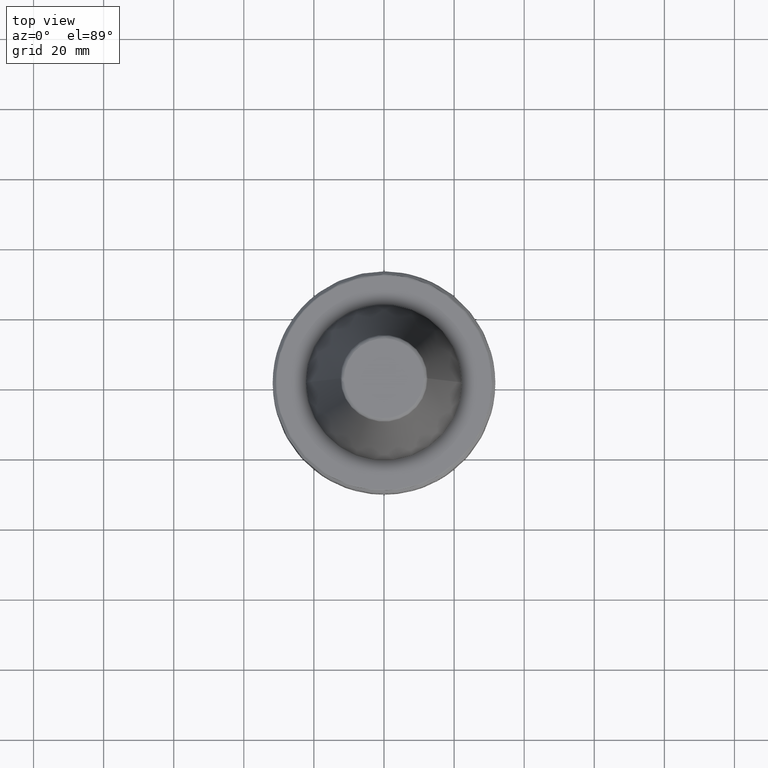
[diagram: clean part render]
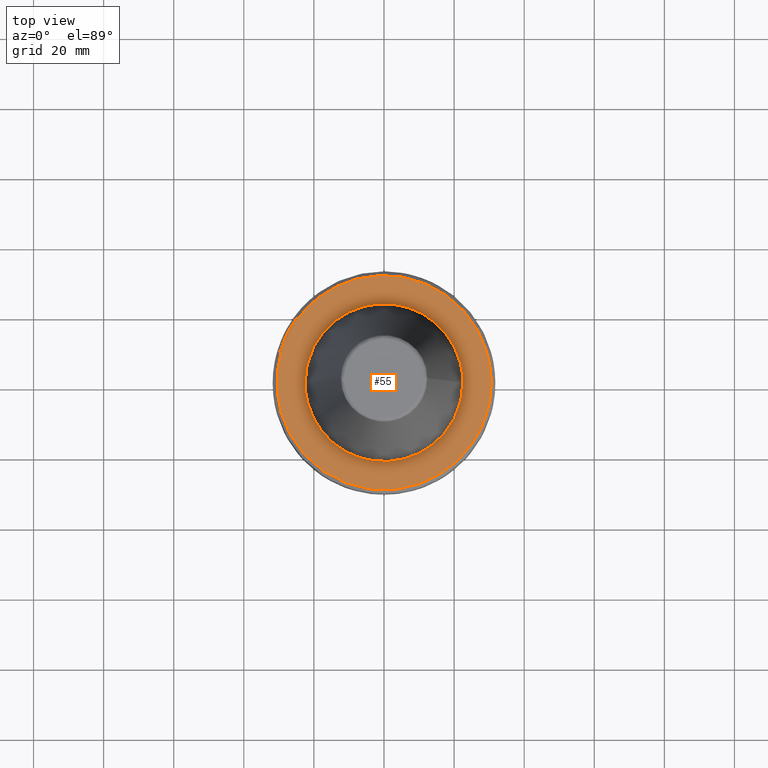
[diagram: same view with one face highlighted and labeled with its STEP entity id]
A machine part, top view. The second image highlights one B-rep face of the part: STEP entity #55.
In plain terms, the highlighted planar face has unit normal (0, 0, 1).
Its self-contained STEP definition (entity closure, byte-faithful):
#27 = CARTESIAN_POINT ( 'NONE',  ( 21.54431431262226600, -21.70996927689732900, -3.200000000000000600 ) ) ;
#30 = CARTESIAN_POINT ( 'NONE',  ( -21.14787063409543700, 7.686207123284956900, -3.200000000000000200 ) ) ;
#31 = CARTESIAN_POINT ( 'NONE',  ( 22.45304634867161300, -1.715799754931167900, -3.200000000000000200 ) ) ;
#39 = CARTESIAN_POINT ( 'NONE',  ( 26.31643672377798600, -15.62062435596873700, -3.200000000000001100 ) ) ;
#41 = CARTESIAN_POINT ( 'NONE',  ( -17.00797338682269500, 14.81177920651246400, -3.200000000000000600 ) ) ;
#43 = CARTESIAN_POINT ( 'NONE',  ( 14.49938022714922100, -17.23607257882569900, -3.199999999999999300 ) ) ;
#45 = CARTESIAN_POINT ( 'NONE',  ( -18.72563884435658800, -12.47437238289159500, -3.200000000000000200 ) ) ;
#54 = CARTESIAN_POINT ( 'NONE',  ( -8.458563634142274500, 20.84958280862222700, -3.200000000000000200 ) ) ;
#55 = ADVANCED_FACE ( 'NONE', ( #2484, #1004 ), #620, .T. ) ;
#61 = CIRCLE ( 'NONE', #1137, 30.58431457505076500 ) ;
#66 = CARTESIAN_POINT ( 'NONE',  ( -25.60566437920638400, -16.72793511368144300, -3.199999999999999700 ) ) ;
#67 = CARTESIAN_POINT ( 'NONE',  ( -1.375857497237935400, 22.49996757040714000, -3.199999999999999700 ) ) ;
#77 = CARTESIAN_POINT ( 'NONE',  ( -19.62778218944514600, -23.51603751686526800, -3.200000000000001100 ) ) ;
#78 = CARTESIAN_POINT ( 'NONE',  ( 7.686207123274499500, 21.14787063409919600, -3.200000000000000600 ) ) ;
#90 = CARTESIAN_POINT ( 'NONE',  ( -9.578915174272756500, -29.04560989628474800, -3.199999999999999700 ) ) ;
#91 = CARTESIAN_POINT ( 'NONE',  ( 14.81177920650271000, 17.00797338683744500, -3.200000000000000600 ) ) ;
#92 = ORIENTED_EDGE ( 'NONE', *, *, #1851, .T. ) ;
#104 = CARTESIAN_POINT ( 'NONE',  ( 0.7805261269332110000, -30.58432787732824200, -3.200000000000000600 ) ) ;
#105 = CARTESIAN_POINT ( 'NONE',  ( 20.84958280862257900, 8.458563634141711400, -3.200000000000000200 ) ) ;
#107 = CARTESIAN_POINT ( 'NONE',  ( -22.10760170058084000, -4.183831549485550900, -3.200000000000000200 ) ) ;
#116 = CARTESIAN_POINT ( 'NONE',  ( 9.187465360224598100, -29.17179097118384600, -3.200000000000000200 ) ) ;
#136 = CARTESIAN_POINT ( 'NONE',  ( 29.30593451889330900, 8.750000000000010700, -3.199999999999994400 ) ) ;
#151 = CARTESIAN_POINT ( 'NONE',  ( 24.54047191478592900, 18.25550594146890800, -3.200000000000001100 ) ) ;
#159 = CARTESIAN_POINT ( 'NONE',  ( 16.33427142386522500, 25.85726144149187200, -3.200000000000000200 ) ) ;
#165 = CARTESIAN_POINT ( 'NONE',  ( 1.756429892742336700, 30.54018886217601300, -3.200000000000000200 ) ) ;
#184 = CARTESIAN_POINT ( 'NONE',  ( -9.340167935440481600, 29.12987215590241500, -3.200000000000000200 ) ) ;
#196 = CARTESIAN_POINT ( 'NONE',  ( -19.24838585782649900, -11.67597141482940200, -3.199999999999999700 ) ) ;
#232 = CARTESIAN_POINT ( 'NONE',  ( 4.251028217301676900, -22.09485092206981000, -3.200000000000000200 ) ) ;
#243 = CARTESIAN_POINT ( 'NONE',  ( 4.407618502877016700, -22.06440325786277500, -3.200000000000000600 ) ) ;
#247 = CARTESIAN_POINT ( 'NONE',  ( 29.30593451889330900, 8.750000000000010700, -3.199999999999994400 ) ) ;
#250 = CARTESIAN_POINT ( 'NONE',  ( -22.45304634867162000, 1.715799754908170300, -3.200000000000000600 ) ) ;
#251 = CARTESIAN_POINT ( 'NONE',  ( 8.370451108365493600, -20.88510905071769100, -3.200000000000001100 ) ) ;
#257 = CARTESIAN_POINT ( 'NONE',  ( 21.91487604512462500, -21.33423715767088100, -3.200000000000001100 ) ) ;
#259 = CARTESIAN_POINT ( 'NONE',  ( 0.0000000000000000000, 0.0000000000000000000, -3.199999999999994400 ) ) ;
#260 = CARTESIAN_POINT ( 'NONE',  ( -20.98673507276603100, 8.112282896141666200, -3.200000000000000600 ) ) ;
#262 = CARTESIAN_POINT ( 'NONE',  ( 8.324524703929661500, -20.90345235396846500, -3.200000000000000600 ) ) ;
#275 = CARTESIAN_POINT ( 'NONE',  ( 27.32133677085897000, -13.74839770497927400, -3.199999999999999700 ) ) ;
#278 = CARTESIAN_POINT ( 'NONE',  ( -14.49938022714616500, 17.23607257882436300, -3.199999999999999700 ) ) ;
#286 = CARTESIAN_POINT ( 'NONE',  ( -3.946081902448917300, -22.15133589248955200, -3.200000000000000600 ) ) ;
#290 = CARTESIAN_POINT ( 'NONE',  ( -8.324524703927975700, 20.90345235396907600, -3.199999999999999700 ) ) ;
#293 = CARTESIAN_POINT ( 'NONE',  ( 8.896980882703543300, -20.66783356944393200, -3.199999999999999300 ) ) ;
#299 = CARTESIAN_POINT ( 'NONE',  ( -25.32397030503309300, -17.14932757286798500, -3.200000000000000200 ) ) ;
#300 = CARTESIAN_POINT ( 'NONE',  ( 1.715646394992351700, 22.45307472456536100, -3.200000000000000600 ) ) ;
#301 = CARTESIAN_POINT ( 'NONE',  ( -20.66783356943510700, -8.896980882719226700, -3.200000000000000200 ) ) ;
#308 = CARTESIAN_POINT ( 'NONE',  ( 0.0000000000000000000, 0.0000000000000000000, -3.199999999999994400 ) ) ;
#311 = CARTESIAN_POINT ( 'NONE',  ( -16.55116382284848000, -25.74326481162033500, -3.200000000000000200 ) ) ;
#312 = CARTESIAN_POINT ( 'NONE',  ( 8.112282896138385300, 20.98673507276721400, -3.200000000000000200 ) ) ;
#327 = CARTESIAN_POINT ( 'NONE',  ( -9.429042497915617100, -29.09460387900038800, -3.200000000000000200 ) ) ;
#328 = CARTESIAN_POINT ( 'NONE',  ( 17.23607257883289300, 14.49938022713325700, -3.200000000000000200 ) ) ;
#334 = CARTESIAN_POINT ( 'NONE',  ( 3.304367424510945100, -30.40973943781369100, -3.200000000000001500 ) ) ;
#335 = CARTESIAN_POINT ( 'NONE',  ( 20.90345235396888100, 8.324524703928553000, -3.200000000000000200 ) ) ;
#336 = CARTESIAN_POINT ( 'NONE',  ( -22.12045798509555200, -4.115310202398622300, -3.200000000000000200 ) ) ;
#343 = CARTESIAN_POINT ( 'NONE',  ( -8.197263642347373000, -20.95368502148340900, -3.199999999999999700 ) ) ;
#344 = CARTESIAN_POINT ( 'NONE',  ( 9.331192961516467900, -29.12613594598079600, -3.199999999999999300 ) ) ;
#348 = CARTESIAN_POINT ( 'NONE',  ( -20.88510905071626700, -8.370451108368008900, -3.199999999999999700 ) ) ;
#354 = ORIENTED_EDGE ( 'NONE', *, *, #1795, .T. ) ;
#369 = CARTESIAN_POINT ( 'NONE',  ( 28.33583760078838100, 11.62329757012845700, -3.200000000000000600 ) ) ;
#377 = CARTESIAN_POINT ( 'NONE',  ( 13.61336996244277300, -27.38773233231018600, -3.200000000000001500 ) ) ;
#380 = CARTESIAN_POINT ( 'NONE',  ( 22.77429056693588900, 20.45246270164044200, -3.200000000000001100 ) ) ;
#389 = CARTESIAN_POINT ( 'NONE',  ( 16.13498759199762100, 25.98207429179320400, -3.199999999999999700 ) ) ;
#395 = B_SPLINE_CURVE_WITH_KNOTS ( 'NONE', 3,
 ( #485, #2272, #1817, #1100, #2712, #1796 ),
 .UNSPECIFIED., .F., .F.,
 ( 4, 2, 4 ),
 ( 0.0000000000000000000, 0.5000000000000000000, 1.000000000000000000 ),
 .UNSPECIFIED. ) ;
#402 = CARTESIAN_POINT ( 'NONE',  ( -0.1069271606581412600, 30.58574494882752100, -3.200000000000001100 ) ) ;
#414 = EDGE_CURVE ( 'NONE', #2200, #774, #395, .T. ) ;
#417 = CARTESIAN_POINT ( 'NONE',  ( -13.61204652640028800, -17.98264380950038800, -3.200000000000000200 ) ) ;
#426 = CARTESIAN_POINT ( 'NONE',  ( -11.24038425294622500, 28.44688173160703600, -3.199999999999999300 ) ) ;
#440 = VERTEX_POINT ( 'NONE', #1777 ) ;
#463 = CARTESIAN_POINT ( 'NONE',  ( 4.719991316668444600, -22.00072453873692200, -3.200000000000000200 ) ) ;
#473 = CARTESIAN_POINT ( 'NONE',  ( 12.87560569880346700, -18.45365423866068300, -3.200000000000000600 ) ) ;
#477 = VERTEX_POINT ( 'NONE', #1562 ) ;
#481 = CARTESIAN_POINT ( 'NONE',  ( -22.22708190165376200, 3.501431974159047400, -3.199999999999999700 ) ) ;
#485 = CARTESIAN_POINT ( 'NONE',  ( -24.35467712833948900, 18.50000000000000000, -3.199999999999994400 ) ) ;
#490 = CARTESIAN_POINT ( 'NONE',  ( 29.30593451889331300, -8.750000000000001800, -3.199999999999994400 ) ) ;
#496 = CARTESIAN_POINT ( 'NONE',  ( 22.63882571490952200, -20.58104395218990500, -3.200000000000000600 ) ) ;
#497 = DIRECTION ( 'NONE',  ( 1.000000000000000000, 0.0000000000000000000, 0.0000000000000000000 ) ) ;
#498 = CARTESIAN_POINT ( 'NONE',  ( -20.93772414133938800, 8.237955812653009200, -3.200000000000000200 ) ) ;
#499 = CARTESIAN_POINT ( 'NONE',  ( 22.13986916256529000, -4.009566559498702000, -3.199999999999999300 ) ) ;
#504 = CARTESIAN_POINT ( 'NONE',  ( 27.54438001541174000, -13.29323302809550500, -3.200000000000000200 ) ) ;
#506 = CARTESIAN_POINT ( 'NONE',  ( -12.87560569880213800, 18.45365423866010000, -3.200000000000001100 ) ) ;
#510 = CARTESIAN_POINT ( 'NONE',  ( 21.99164062164117800, -4.811519987949947300, -3.200000000000000600 ) ) ;
#521 = CARTESIAN_POINT ( 'NONE',  ( -28.19324632027987900, -11.86640829661781500, -3.200000000000000200 ) ) ;
#522 = CARTESIAN_POINT ( 'NONE',  ( -6.571610993404996200, 21.54071728403503300, -3.199999999999999700 ) ) ;
#523 = CARTESIAN_POINT ( 'NONE',  ( 6.571610993358049800, -21.54071728405216400, -3.200000000000000600 ) ) ;
#534 = CARTESIAN_POINT ( 'NONE',  ( -25.23910393721046200, -17.27398592321662800, -3.200000000000000200 ) ) ;
#535 = CARTESIAN_POINT ( 'NONE',  ( 3.501364879195867800, 22.22709431610727600, -3.200000000000000600 ) ) ;
#542 = DIRECTION ( 'NONE',  ( 1.000000000000000000, 0.0000000000000000000, 0.0000000000000000000 ) ) ;
#545 = CARTESIAN_POINT ( 'NONE',  ( -14.63881711984340800, -26.85489300922450800, -3.199999999999999700 ) ) ;
#546 = CARTESIAN_POINT ( 'NONE',  ( 8.237955812653522600, 20.93772414133914200, -3.199999999999999700 ) ) ;
#554 = CARTESIAN_POINT ( 'NONE',  ( -7.438720675766394800, -29.68542035773223400, -3.200000000000001500 ) ) ;
#555 = CARTESIAN_POINT ( 'NONE',  ( 18.45365423866382000, 12.87560569879649600, -3.200000000000000200 ) ) ;
#559 = CARTESIAN_POINT ( 'NONE',  ( 0.0000000000000000000, 0.0000000000000000000, -3.199999999999994400 ) ) ;
#565 = CARTESIAN_POINT ( 'NONE',  ( 4.319105167334708300, -30.27808647421170800, -3.199999999999999700 ) ) ;
#567 = CARTESIAN_POINT ( 'NONE',  ( 21.54071728404044400, 6.571610993388965500, -3.200000000000000200 ) ) ;
#570 = CARTESIAN_POINT ( 'NONE',  ( -22.50000000000000700, -1.376388306158772500, -3.200000000000000600 ) ) ;
#581 = CARTESIAN_POINT ( 'NONE',  ( -8.112282896148109000, -20.98673507276421500, -3.200000000000000200 ) ) ;
#582 = CARTESIAN_POINT ( 'NONE',  ( 11.34454123684995600, -28.42400519015282300, -3.199999999999999700 ) ) ;
#587 = EDGE_CURVE ( 'NONE', #477, #1356, #652, .T. ) ;
#600 = CARTESIAN_POINT ( 'NONE',  ( 26.94337422490542300, 14.47847139620824000, -3.200000000000000200 ) ) ;
#607 = CARTESIAN_POINT ( 'NONE',  ( 20.78517142377217700, 22.45144644049074500, -3.199999999999999700 ) ) ;
#608 = AXIS2_PLACEMENT_3D ( 'NONE', #2263, #2278, #1326 ) ;
#617 = CARTESIAN_POINT ( 'NONE',  ( 11.80488663217673900, 28.31907149285062900, -3.199999999999999700 ) ) ;
#620 = PLANE ( 'NONE',  #608 ) ;
#627 = CARTESIAN_POINT ( 'NONE',  ( -1.037282440228860500, 30.56832190550300900, -3.200000000000000600 ) ) ;
#652 = B_SPLINE_CURVE_WITH_KNOTS ( 'NONE', 3,
 ( #2538, #1882, #31, #923, #2371, #1419, #990, #499, #2107, #1894, #510, #1906, #2147, #2584, #2134, #1625, #746, #1206, #2563, #2612, #2119, #2800, #2839, #2826, #2782, #1401, #1668, #1922, #43, #966, #473, #1195, #2814, #3002, #698, #1167, #1410, #293, #939, #2358, #251, #262, #723, #523, #2574, #463, #243, #232, #1643, #2099, #2552, #2593, #2365, #1676, #1440, #1215, #973, #739, #286, #2833, #2890, #2660, #2202, #1978, #1741, #1499, #1281, #581, #343, #2046, #1576, #1802, #2268, #1818, #1815, #2503, #2726, #417, #2148, #1747, #1718, #1573, #2044, #1794, #45, #970, #196, #2980, #1707, #301, #1097, #1121, #348, #896, #2289, #1025, #2652, #1267, #2882, #1494, #107, #1729, #336, #1970, #570, #2194 ),
 .UNSPECIFIED., .F., .F.,
 ( 4, 1, 1, 1, 1, 1, 2, 2, 1, 1, 1, 1, 2, 2, 1, 1, 1, 2, 2, 2, 1, 1, 1, 2, 2, 1, 1, 1, 1, 2, 2, 1, 1, 1, 1, 1, 2, 2, 2, 1, 1, 1, 1, 1, 2, 2, 1, 1, 1, 1, 2, 2, 1, 1, 1, 2, 2, 2, 1, 1, 1, 2, 2, 1, 1, 1, 1, 2, 2, 1, 1, 1, 1, 1, 2, 2, 4 ),
 ( 0.0000000000000000000, 0.03124999999999908400, 0.04687499999999860500, 0.05468749999999836900, 0.05859374999999825800, 0.06054687499999819600, 0.06152343749999818900, 0.06249999999999818200, 0.09374999999999732200, 0.1093749999999968900, 0.1171874999999966700, 0.1210937499999965400, 0.1230468749999965400, 0.1249999999999965300, 0.1562499999999963600, 0.1718749999999962500, 0.1796874999999961700, 0.1835937499999960900, 0.1874999999999960000, 0.2499999999999953400, 0.2812499999999949500, 0.2968749999999948400, 0.3046874999999947800, 0.3085937499999947800, 0.3124999999999947800, 0.3437499999999951200, 0.3593749999999953400, 0.3671874999999953900, 0.3710937499999954500, 0.3730468749999955000, 0.3749999999999955600, 0.4062499999999958400, 0.4218749999999960000, 0.4296874999999960600, 0.4335937499999960600, 0.4355468749999960600, 0.4365234374999960600, 0.4374999999999960000, 0.4999999999999953400, 0.5312499999999950000, 0.5468749999999947800, 0.5546874999999946700, 0.5585937499999946700, 0.5605468749999945600, 0.5615234374999945600, 0.5624999999999944500, 0.5937499999999942300, 0.6093749999999941200, 0.6171874999999940000, 0.6210937499999938900, 0.6230468749999940000, 0.6249999999999940000, 0.6562499999999947800, 0.6718749999999952300, 0.6796874999999954500, 0.6835937499999955600, 0.6874999999999955600, 0.7499999999999982200, 0.7812499999999995600, 0.7968750000000002200, 0.8046875000000005600, 0.8085937500000007800, 0.8125000000000008900, 0.8437500000000022200, 0.8593750000000028900, 0.8671875000000032200, 0.8710937500000033300, 0.8730468750000034400, 0.8750000000000034400, 0.9062500000000028900, 0.9218750000000026600, 0.9296875000000025500, 0.9335937500000024400, 0.9355468750000023300, 0.9365234375000023300, 0.9375000000000022200, 1.000000000000000000 ),
 .UNSPECIFIED. ) ;
#658 = CARTESIAN_POINT ( 'NONE',  ( -11.95872026362621900, 28.14951867898244600, -3.200000000000000200 ) ) ;
#689 = CARTESIAN_POINT ( 'NONE',  ( 22.37479026312431400, 2.741111199236805400, -3.200000000000000600 ) ) ;
#698 = CARTESIAN_POINT ( 'NONE',  ( 11.67597141480891300, -19.24838585783804100, -3.200000000000000600 ) ) ;
#720 = CARTESIAN_POINT ( 'NONE',  ( 13.79955834376239000, -27.29438307719062400, -3.200000000000001100 ) ) ;
#722 = CARTESIAN_POINT ( 'NONE',  ( -22.15133245634663700, 3.946100473368277900, -3.200000000000000200 ) ) ;
#723 = CARTESIAN_POINT ( 'NONE',  ( 7.603831144541866000, -21.18878749288407800, -3.200000000000000200 ) ) ;
#725 = ORIENTED_EDGE ( 'NONE', *, *, #1518, .T. ) ;
#731 = CARTESIAN_POINT ( 'NONE',  ( 24.36043102569355800, -18.50078877836920200, -3.200000000000001100 ) ) ;
#733 = CARTESIAN_POINT ( 'NONE',  ( -20.16961076429744200, 10.02279629559074100, -3.199999999999999300 ) ) ;
#739 = CARTESIAN_POINT ( 'NONE',  ( -3.797919010166013600, -22.17744484798386800, -3.200000000000001100 ) ) ;
#741 = CARTESIAN_POINT ( 'NONE',  ( 27.61100680695630400, -13.15427429998554700, -3.199999999999999700 ) ) ;
#745 = CARTESIAN_POINT ( 'NONE',  ( -12.47437238289334600, 18.72563884435544800, -3.200000000000000200 ) ) ;
#746 = CARTESIAN_POINT ( 'NONE',  ( 20.95368502148340500, -8.197263642347369500, -3.199999999999999700 ) ) ;
#756 = CARTESIAN_POINT ( 'NONE',  ( -27.77681930598307900, -12.80099507031015300, -3.200000000000000600 ) ) ;
#757 = CARTESIAN_POINT ( 'NONE',  ( -4.719991316688983800, 22.00072453872944300, -3.200000000000000600 ) ) ;
#768 = CARTESIAN_POINT ( 'NONE',  ( -23.99031363753007500, -19.00230350504480000, -3.200000000000000600 ) ) ;
#769 = CARTESIAN_POINT ( 'NONE',  ( 3.946081902440961000, 22.15133589249003200, -3.200000000000000600 ) ) ;
#774 = VERTEX_POINT ( 'NONE', #931 ) ;
#781 = CARTESIAN_POINT ( 'NONE',  ( -14.17277443620803400, -27.10247095660044200, -3.200000000000000200 ) ) ;
#782 = CARTESIAN_POINT ( 'NONE',  ( 10.02279629557633300, 20.16961076430403600, -3.200000000000000600 ) ) ;
#793 = CARTESIAN_POINT ( 'NONE',  ( -5.357254148467523800, -30.11268354680666400, -3.200000000000000200 ) ) ;
#794 = CARTESIAN_POINT ( 'NONE',  ( 18.72563884435662000, 12.47437238289156800, -3.199999999999999300 ) ) ;
#796 = DIRECTION ( 'NONE',  ( 1.000000000000000000, 0.0000000000000000000, 0.0000000000000000000 ) ) ;
#800 = CARTESIAN_POINT ( 'NONE',  ( 4.560392810198640800, -30.24244440558943100, -3.200000000000000200 ) ) ;
#801 = CARTESIAN_POINT ( 'NONE',  ( 22.00072453873180600, 4.719991316681966300, -3.200000000000000200 ) ) ;
#811 = CARTESIAN_POINT ( 'NONE',  ( 13.33348093169566300, -27.52628396580366000, -3.200000000000000200 ) ) ;
#817 = CARTESIAN_POINT ( 'NONE',  ( 22.11603594838275600, 4.139014538616730300, -3.200000000000001100 ) ) ;
#835 = CARTESIAN_POINT ( 'NONE',  ( 26.57327955334341100, 15.14158967653128800, -3.199999999999999300 ) ) ;
#846 = CARTESIAN_POINT ( 'NONE',  ( 19.60237854233957200, 23.47705769605833500, -3.200000000000000200 ) ) ;
#855 = CARTESIAN_POINT ( 'NONE',  ( 6.576107746342494800, 29.91282126789445400, -3.199999999999999300 ) ) ;
#864 = CARTESIAN_POINT ( 'NONE',  ( -3.848954711156217900, 30.36703951690235600, -3.200000000000000200 ) ) ;
#885 = CARTESIAN_POINT ( 'NONE',  ( -12.17478045277850300, 28.05674127324150300, -3.200000000000001100 ) ) ;
#896 = CARTESIAN_POINT ( 'NONE',  ( -20.90345235396920400, -8.324524703927284700, -3.199999999999999700 ) ) ;
#903 = DIRECTION ( 'NONE',  ( -0.0000000000000000000, -0.0000000000000000000, 1.000000000000000000 ) ) ;
#916 = ORIENTED_EDGE ( 'NONE', *, *, #2029, .T. ) ;
#923 = CARTESIAN_POINT ( 'NONE',  ( 22.31609819896382200, -2.907458251744042200, -3.200000000000000600 ) ) ;
#926 = CARTESIAN_POINT ( 'NONE',  ( 22.50000000000000400, 0.0000000000000000000, -3.199999999999999300 ) ) ;
#931 = CARTESIAN_POINT ( 'NONE',  ( -29.30593451889331300, 8.750000000000008900, -3.199999999999999300 ) ) ;
#939 = CARTESIAN_POINT ( 'NONE',  ( 8.590524805351991600, -20.79589492657481400, -3.199999999999999700 ) ) ;
#945 = CARTESIAN_POINT ( 'NONE',  ( 15.48792760813897800, -26.42690957763580100, -3.200000000000000200 ) ) ;
#948 = CARTESIAN_POINT ( 'NONE',  ( -22.13216582914423100, 4.051871761184235000, -3.200000000000000200 ) ) ;
#962 = CARTESIAN_POINT ( 'NONE',  ( 25.00162825172242300, -17.61641936754373800, -3.200000000000001100 ) ) ;
#964 = CARTESIAN_POINT ( 'NONE',  ( -19.18907189198502300, 11.75138774876048900, -3.200000000000000600 ) ) ;
#966 = CARTESIAN_POINT ( 'NONE',  ( 13.42792791067997600, -18.06135158014202000, -3.199999999999999700 ) ) ;
#970 = CARTESIAN_POINT ( 'NONE',  ( -18.78040064549380300, -12.39175045570773800, -3.200000000000000600 ) ) ;
#973 = CARTESIAN_POINT ( 'NONE',  ( -3.501364879224580000, -22.22709431610556100, -3.200000000000000600 ) ) ;
#974 = CARTESIAN_POINT ( 'NONE',  ( 28.85918037031911600, -10.24629117990394200, -3.200000000000000600 ) ) ;
#976 = CARTESIAN_POINT ( 'NONE',  ( -11.67597141481949700, 19.24838585783297900, -3.200000000000001100 ) ) ;
#988 = CARTESIAN_POINT ( 'NONE',  ( -27.67364674244797800, -13.02197758003961100, -3.199999999999998400 ) ) ;
#989 = CARTESIAN_POINT ( 'NONE',  ( -4.251028217307362100, 22.09485092206773900, -3.200000000000001100 ) ) ;
#990 = CARTESIAN_POINT ( 'NONE',  ( 22.15133245634663300, -3.946100473371058700, -3.199999999999999700 ) ) ;
#997 = CARTESIAN_POINT ( 'NONE',  ( -22.56109142496934400, -20.65127541912130800, -3.200000000000000200 ) ) ;
#998 = CARTESIAN_POINT ( 'NONE',  ( 4.051866326834534100, 22.13216683465163800, -3.200000000000001100 ) ) ;
#1004 = FACE_BOUND ( 'NONE', #1583, .T. ) ;
#1014 = CARTESIAN_POINT ( 'NONE',  ( -13.24394569617793300, -27.58067624820742500, -3.200000000000000200 ) ) ;
#1015 = CARTESIAN_POINT ( 'NONE',  ( 11.75138774875418000, 19.18907189198790100, -3.200000000000001100 ) ) ;
#1022 = CARTESIAN_POINT ( 'NONE',  ( -4.857303280930590700, -30.19618385839299200, -3.200000000000000600 ) ) ;
#1023 = CARTESIAN_POINT ( 'NONE',  ( 19.24838585783446000, 11.67597141481715200, -3.199999999999999700 ) ) ;
#1025 = CARTESIAN_POINT ( 'NONE',  ( -21.54071728403163600, -6.571610993424445500, -3.200000000000000600 ) ) ;
#1034 = CARTESIAN_POINT ( 'NONE',  ( 5.458850156843987600, -30.10416084471147600, -3.199999999999999700 ) ) ;
#1035 = CARTESIAN_POINT ( 'NONE',  ( 22.09485092206839200, 4.251028217305421500, -3.199999999999999700 ) ) ;
#1053 = CIRCLE ( 'NONE', #2710, 30.58431457505076500 ) ;
#1058 = CARTESIAN_POINT ( 'NONE',  ( 28.95764183663448000, 9.916519147392794100, -3.200000000000000600 ) ) ;
#1067 = CARTESIAN_POINT ( 'NONE',  ( 26.46043628646894400, 15.33791319425575300, -3.200000000000000600 ) ) ;
#1077 = CARTESIAN_POINT ( 'NONE',  ( 19.23818591257921900, 23.77638626440857200, -3.200000000000001100 ) ) ;
#1090 = CARTESIAN_POINT ( 'NONE',  ( 3.435970030502951900, 30.39351583441294100, -3.199999999999999700 ) ) ;
#1097 = CARTESIAN_POINT ( 'NONE',  ( -20.79589492657008900, -8.590524805360397300, -3.200000000000000200 ) ) ;
#1100 = CARTESIAN_POINT ( 'NONE',  ( -28.10145510426450200, 12.21006217780604800, -3.200000000000000200 ) ) ;
#1114 = CARTESIAN_POINT ( 'NONE',  ( -6.624788100412467400, 29.86976700629700700, -3.200000000000001100 ) ) ;
#1119 = CARTESIAN_POINT ( 'NONE',  ( -16.56085603394842200, 25.82766579425001700, -3.199999999999999700 ) ) ;
#1121 = CARTESIAN_POINT ( 'NONE',  ( -20.84958280862066700, -8.458563634144654800, -3.200000000000000600 ) ) ;
#1137 = AXIS2_PLACEMENT_3D ( 'NONE', #2302, #903, #2522 ) ;
#1167 = CARTESIAN_POINT ( 'NONE',  ( 10.69502432678837800, -19.82135572083744200, -3.199999999999999700 ) ) ;
#1179 = CARTESIAN_POINT ( 'NONE',  ( -22.50000000000000700, 0.6880163828565797300, -3.200000000000001100 ) ) ;
#1191 = CARTESIAN_POINT ( 'NONE',  ( 18.95028892444334900, -24.02085740249146500, -3.200000000000000600 ) ) ;
#1193 = CARTESIAN_POINT ( 'NONE',  ( -21.99164062164871000, 4.811519987923173100, -3.200000000000001100 ) ) ;
#1195 = CARTESIAN_POINT ( 'NONE',  ( 12.63533988221884200, -18.61742605471019700, -3.200000000000000200 ) ) ;
#1203 = CARTESIAN_POINT ( 'NONE',  ( 25.15049554832293300, -17.40274506740674100, -3.200000000000001100 ) ) ;
#1205 = CARTESIAN_POINT ( 'NONE',  ( -18.93590339580232400, 12.15280497094196100, -3.199999999999999700 ) ) ;
#1206 = CARTESIAN_POINT ( 'NONE',  ( 20.93772414133970000, -8.237955812652693100, -3.200000000000000200 ) ) ;
#1215 = CARTESIAN_POINT ( 'NONE',  ( -2.907343231839132800, -22.31611948088118800, -3.200000000000000600 ) ) ;
#1219 = CARTESIAN_POINT ( 'NONE',  ( -29.30593451889330600, -8.750000000000005300, -3.199999999999998800 ) ) ;
#1220 = CARTESIAN_POINT ( 'NONE',  ( -9.504079748845599700, 20.40055232577251900, -3.200000000000001500 ) ) ;
#1235 = CARTESIAN_POINT ( 'NONE',  ( -27.28410426008420900, -13.84330885026471600, -3.199999999999999300 ) ) ;
#1236 = CARTESIAN_POINT ( 'NONE',  ( -4.139014538617297000, 22.11603594838256000, -3.200000000000000200 ) ) ;
#1244 = CARTESIAN_POINT ( 'NONE',  ( -22.20554153728712200, -21.03152593330405300, -3.200000000000000600 ) ) ;
#1245 = CARTESIAN_POINT ( 'NONE',  ( 4.811519987909519200, 21.99164062165363400, -3.200000000000000200 ) ) ;
#1254 = CARTESIAN_POINT ( 'NONE',  ( -10.75810060098333100, -28.63517167118836300, -3.200000000000000600 ) ) ;
#1255 = CARTESIAN_POINT ( 'NONE',  ( 12.15280497093997500, 18.93590339580323000, -3.200000000000000200 ) ) ;
#1264 = CARTESIAN_POINT ( 'NONE',  ( -4.705085878610024300, -30.22027126947322600, -3.199999999999999700 ) ) ;
#1266 = CARTESIAN_POINT ( 'NONE',  ( 20.40055232577446300, 9.504079748842523000, -3.200000000000000600 ) ) ;
#1267 = CARTESIAN_POINT ( 'NONE',  ( -22.00072453872795100, -4.719991316697491600, -3.200000000000000600 ) ) ;
#1281 = CARTESIAN_POINT ( 'NONE',  ( -7.984698353444732000, -21.03591195338748700, -3.200000000000000200 ) ) ;
#1282 = CARTESIAN_POINT ( 'NONE',  ( 8.022211266182147000, -29.51842591294642700, -3.199999999999999300 ) ) ;
#1283 = CARTESIAN_POINT ( 'NONE',  ( 30.58431457505076500, 0.0000000000000000000, -3.199999999999997100 ) ) ;
#1296 = ORIENTED_EDGE ( 'NONE', *, *, #414, .T. ) ;
#1307 = CARTESIAN_POINT ( 'NONE',  ( 25.61393462943019000, 16.73340307646572400, -3.200000000000000200 ) ) ;
#1312 = VERTEX_POINT ( 'NONE', #1283 ) ;
#1315 = CARTESIAN_POINT ( 'NONE',  ( 17.88588114721943300, 24.82288649367548000, -3.199999999999999700 ) ) ;
#1325 = CARTESIAN_POINT ( 'NONE',  ( 2.680059272113613800, 30.46677238501893500, -3.199999999999999700 ) ) ;
#1326 = DIRECTION ( 'NONE',  ( 1.000000000000000000, 0.0000000000000000000, -0.0000000000000000000 ) ) ;
#1333 = ORIENTED_EDGE ( 'NONE', *, *, #2613, .T. ) ;
#1349 = CARTESIAN_POINT ( 'NONE',  ( -8.141340568208145000, 29.48124923292406800, -3.199999999999999700 ) ) ;
#1356 = VERTEX_POINT ( 'NONE', #2703 ) ;
#1401 = CARTESIAN_POINT ( 'NONE',  ( 17.98264380952407700, -13.61204652636657500, -3.199999999999999700 ) ) ;
#1410 = CARTESIAN_POINT ( 'NONE',  ( 9.504079748831721000, -20.40055232577914500, -3.200000000000000600 ) ) ;
#1416 = CARTESIAN_POINT ( 'NONE',  ( 21.01696416247756700, -22.22623960068250100, -3.200000000000000200 ) ) ;
#1417 = CARTESIAN_POINT ( 'NONE',  ( -21.36063849916189700, 7.086048807666240500, -3.199999999999999300 ) ) ;
#1419 = CARTESIAN_POINT ( 'NONE',  ( 22.17743819738469600, -3.797954953886299600, -3.200000000000000600 ) ) ;
#1428 = CIRCLE ( 'NONE', #2889, 30.58431457505076500 ) ;
#1429 = CARTESIAN_POINT ( 'NONE',  ( 25.66906082884532800, -16.64808964171818000, -3.199999999999999300 ) ) ;
#1431 = CARTESIAN_POINT ( 'NONE',  ( -17.98264380950361400, 13.61204652639205500, -3.199999999999999700 ) ) ;
#1440 = CARTESIAN_POINT ( 'NONE',  ( -1.715646395057947200, -22.45307472456143200, -3.200000000000000600 ) ) ;
#1445 = CARTESIAN_POINT ( 'NONE',  ( -8.590524805356333000, 20.79589492657273900, -3.199999999999999700 ) ) ;
#1455 = VERTEX_POINT ( 'NONE', #247 ) ;
#1456 = CARTESIAN_POINT ( 'NONE',  ( -25.98948903614969200, -16.13194971530072100, -3.200000000000000200 ) ) ;
#1457 = CARTESIAN_POINT ( 'NONE',  ( -2.741286511587084400, 22.37475781688785000, -3.200000000000000200 ) ) ;
#1469 = CARTESIAN_POINT ( 'NONE',  ( -20.89129424424418200, -22.40114452922760100, -3.199999999999999700 ) ) ;
#1470 = CARTESIAN_POINT ( 'NONE',  ( 7.086048807648322300, 21.36063849916836300, -3.200000000000000600 ) ) ;
#1482 = CARTESIAN_POINT ( 'NONE',  ( -9.727253638774389100, -28.99655467840012000, -3.200000000000000200 ) ) ;
#1483 = CARTESIAN_POINT ( 'NONE',  ( 13.61204652639695000, 17.98264380950372400, -3.200000000000000200 ) ) ;
#1491 = CARTESIAN_POINT ( 'NONE',  ( -1.561052253866448600, -30.58428797049582900, -3.200000000000000200 ) ) ;
#1492 = CARTESIAN_POINT ( 'NONE',  ( 20.79589492657334300, 8.590524805355373800, -3.199999999999999300 ) ) ;
#1494 = CARTESIAN_POINT ( 'NONE',  ( -22.09485092206732700, -4.251028217309717600, -3.200000000000000600 ) ) ;
#1499 = CARTESIAN_POINT ( 'NONE',  ( -7.686207123305462300, -21.14787063408966000, -3.200000000000000600 ) ) ;
#1500 = CARTESIAN_POINT ( 'NONE',  ( 9.042334779843894700, -29.21737119051421100, -3.200000000000000200 ) ) ;
#1518 = EDGE_CURVE ( 'NONE', #774, #1640, #1428, .T. ) ;
#1533 = CARTESIAN_POINT ( 'NONE',  ( 24.72355445172999600, 18.00675945258179000, -3.200000000000000200 ) ) ;
#1542 = CARTESIAN_POINT ( 'NONE',  ( 16.53138120580203500, 25.73240088654582500, -3.200000000000000200 ) ) ;
#1553 = CARTESIAN_POINT ( 'NONE',  ( 2.454392795801720400, 30.48577087148501300, -3.200000000000000200 ) ) ;
#1562 = CARTESIAN_POINT ( 'NONE',  ( 22.50000000000000400, 0.0000000000000000000, -3.199999999999999300 ) ) ;
#1573 = CARTESIAN_POINT ( 'NONE',  ( -18.06135158014722800, -13.42792791066820300, -3.200000000000000600 ) ) ;
#1576 = CARTESIAN_POINT ( 'NONE',  ( -8.988933404976533500, -20.64043889494298900, -3.199999999999999700 ) ) ;
#1583 = EDGE_LOOP ( 'NONE', ( #1333, #2829 ) ) ;
#1584 = CARTESIAN_POINT ( 'NONE',  ( -8.594763330018802000, 29.35224666532914000, -3.200000000000000600 ) ) ;
#1600 = EDGE_LOOP ( 'NONE', ( #1730, #1296, #725, #92, #2188, #354, #916 ) ) ;
#1625 = CARTESIAN_POINT ( 'NONE',  ( 20.98673507276421500, -8.112282896148103700, -3.200000000000000200 ) ) ;
#1640 = VERTEX_POINT ( 'NONE', #2885 ) ;
#1643 = CARTESIAN_POINT ( 'NONE',  ( 4.183831549480899500, -22.10760170058227900, -3.200000000000000200 ) ) ;
#1655 = CARTESIAN_POINT ( 'NONE',  ( 21.76708313655939300, -21.48502183610759900, -3.200000000000000200 ) ) ;
#1657 = CARTESIAN_POINT ( 'NONE',  ( -21.03591195339058500, 7.984698353433742600, -3.200000000000000600 ) ) ;
#1664 = CARTESIAN_POINT ( 'NONE',  ( 26.99856130459875900, -14.37953634111175700, -3.200000000000001100 ) ) ;
#1666 = CARTESIAN_POINT ( 'NONE',  ( -15.36086717163463800, 16.45896426178976300, -3.200000000000001100 ) ) ;
#1668 = CARTESIAN_POINT ( 'NONE',  ( 17.00797338681919900, -14.81177920651095200, -3.200000000000000600 ) ) ;
#1676 = CARTESIAN_POINT ( 'NONE',  ( -0.6879287486564484900, -22.50001621479418300, -3.200000000000000200 ) ) ;
#1680 = CARTESIAN_POINT ( 'NONE',  ( -8.370451108366790300, 20.88510905071707000, -3.200000000000000200 ) ) ;
#1691 = CARTESIAN_POINT ( 'NONE',  ( -25.40916637816982900, -17.02330348438504600, -3.200000000000001100 ) ) ;
#1692 = CARTESIAN_POINT ( 'NONE',  ( 0.6879287486189594700, 22.50001621479642500, -3.199999999999999300 ) ) ;
#1705 = CARTESIAN_POINT ( 'NONE',  ( -17.59524950984059200, -25.03042619208175200, -3.199999999999999300 ) ) ;
#1706 = CARTESIAN_POINT ( 'NONE',  ( 7.984698353428139100, 21.03591195339260300, -3.200000000000000200 ) ) ;
#1707 = CARTESIAN_POINT ( 'NONE',  ( -20.40055232576401100, -9.504079748858595500, -3.199999999999999700 ) ) ;
#1715 = CARTESIAN_POINT ( 'NONE',  ( -9.479920520532862900, -29.07806852477902400, -3.200000000000000600 ) ) ;
#1716 = CARTESIAN_POINT ( 'NONE',  ( 16.45896426179462000, 15.36086717162726200, -3.199999999999999700 ) ) ;
#1718 = CARTESIAN_POINT ( 'NONE',  ( -17.23607257883263300, -14.49938022713351800, -3.200000000000000200 ) ) ;
#1727 = CARTESIAN_POINT ( 'NONE',  ( 1.948029713514684000, -30.53976102089345400, -3.200000000000000600 ) ) ;
#1728 = CARTESIAN_POINT ( 'NONE',  ( 20.88510905071724400, 8.370451108366499000, -3.200000000000001100 ) ) ;
#1729 = CARTESIAN_POINT ( 'NONE',  ( -22.11603594838243900, -4.139014538617989700, -3.200000000000000600 ) ) ;
#1730 = ORIENTED_EDGE ( 'NONE', *, *, #2100, .T. ) ;
#1741 = CARTESIAN_POINT ( 'NONE',  ( -7.086048807701388300, -21.36063849915201700, -3.200000000000001100 ) ) ;
#1743 = CARTESIAN_POINT ( 'NONE',  ( 9.284161809036266500, -29.14115916764551200, -3.199999999999999700 ) ) ;
#1747 = CARTESIAN_POINT ( 'NONE',  ( -16.45896426179448100, -15.36086717162741000, -3.200000000000001100 ) ) ;
#1773 = CARTESIAN_POINT ( 'NONE',  ( 23.59206616265286600, 19.50355204644443300, -3.200000000000000200 ) ) ;
#1777 = CARTESIAN_POINT ( 'NONE',  ( -18.49999999999998900, 24.35467712833949600, -3.199999999999994400 ) ) ;
#1781 = CARTESIAN_POINT ( 'NONE',  ( 16.20252111302109600, 25.94001894739811200, -3.199999999999999700 ) ) ;
#1791 = CARTESIAN_POINT ( 'NONE',  ( 0.8252062185939809100, 30.58430088161415800, -3.199999999999999700 ) ) ;
#1794 = CARTESIAN_POINT ( 'NONE',  ( -18.61742605471202700, -12.63533988221470800, -3.199999999999999700 ) ) ;
#1795 = EDGE_CURVE ( 'NONE', #1312, #1455, #1053, .T. ) ;
#1796 = CARTESIAN_POINT ( 'NONE',  ( -29.30593451889331300, 8.750000000000008900, -3.199999999999999300 ) ) ;
#1802 = CARTESIAN_POINT ( 'NONE',  ( -10.02279629560528400, -20.16961076428609100, -3.200000000000000600 ) ) ;
#1815 = CARTESIAN_POINT ( 'NONE',  ( -11.99256734168715800, -19.03780993567515600, -3.200000000000000200 ) ) ;
#1817 = CARTESIAN_POINT ( 'NONE',  ( -26.43773944749934700, 15.48610090929884100, -3.200000000000000600 ) ) ;
#1818 = CARTESIAN_POINT ( 'NONE',  ( -11.75138774876684200, -19.18907189198004900, -3.200000000000000200 ) ) ;
#1819 = CARTESIAN_POINT ( 'NONE',  ( -10.22499329430633900, 28.83626103400671100, -3.200000000000001100 ) ) ;
#1851 = EDGE_CURVE ( 'NONE', #1640, #2681, #2728, .T. ) ;
#1880 = CARTESIAN_POINT ( 'NONE',  ( -22.31609819896381800, 2.907458251726792000, -3.199999999999999700 ) ) ;
#1882 = CARTESIAN_POINT ( 'NONE',  ( 22.49999999999999600, -0.6880163828697204400, -3.199999999999998800 ) ) ;
#1889 = CARTESIAN_POINT ( 'NONE',  ( 21.98943496481200600, -21.25737027114117000, -3.200000000000001100 ) ) ;
#1891 = DIRECTION ( 'NONE',  ( -0.0000000000000000000, -0.0000000000000000000, 1.000000000000000000 ) ) ;
#1892 = CARTESIAN_POINT ( 'NONE',  ( -20.95368502148434700, 8.197263642344069000, -3.199999999999999300 ) ) ;
#1894 = CARTESIAN_POINT ( 'NONE',  ( 22.12851860711453600, -4.071751450877114200, -3.200000000000000200 ) ) ;
#1902 = CARTESIAN_POINT ( 'NONE',  ( 27.47815279795154100, -13.43017972973703400, -3.199999999999999700 ) ) ;
#1905 = CARTESIAN_POINT ( 'NONE',  ( -13.42792791067768300, 18.06135158014102500, -3.200000000000000200 ) ) ;
#1906 = CARTESIAN_POINT ( 'NONE',  ( 21.74157624390884500, -5.873028755191072900, -3.200000000000000200 ) ) ;
#1918 = CARTESIAN_POINT ( 'NONE',  ( -28.70585737795346400, -10.60399651555045600, -3.199999999999999300 ) ) ;
#1919 = CARTESIAN_POINT ( 'NONE',  ( -7.603831144568696100, 21.18878749287429700, -3.200000000000000200 ) ) ;
#1922 = CARTESIAN_POINT ( 'NONE',  ( 15.36086717163637700, -16.45896426179050900, -3.199999999999999700 ) ) ;
#1930 = CARTESIAN_POINT ( 'NONE',  ( -25.26695455758170900, -17.23321866383344100, -3.200000000000001500 ) ) ;
#1931 = CARTESIAN_POINT ( 'NONE',  ( 2.907343231789928200, 22.31611948088413700, -3.200000000000001100 ) ) ;
#1938 = DIRECTION ( 'NONE',  ( -0.0000000000000000000, -0.0000000000000000000, 1.000000000000000000 ) ) ;
#1942 = CARTESIAN_POINT ( 'NONE',  ( -15.28437999710880700, -26.49728736112676600, -3.200000000000000200 ) ) ;
#1943 = CARTESIAN_POINT ( 'NONE',  ( 8.197263642342381500, 20.95368502148494400, -3.199999999999999700 ) ) ;
#1953 = CARTESIAN_POINT ( 'NONE',  ( -8.608449994990852600, -29.35905586420431500, -3.200000000000001500 ) ) ;
#1955 = CARTESIAN_POINT ( 'NONE',  ( 18.06135158014742400, 13.42792791066801300, -3.200000000000000600 ) ) ;
#1965 = CARTESIAN_POINT ( 'NONE',  ( 3.981098828338542500, -30.32522191696400100, -3.200000000000000600 ) ) ;
#1966 = CARTESIAN_POINT ( 'NONE',  ( 21.18878749287739200, 7.603831144559534600, -3.200000000000000600 ) ) ;
#1970 = CARTESIAN_POINT ( 'NONE',  ( -22.37479026312430700, -2.741111199249898400, -3.200000000000000600 ) ) ;
#1978 = CARTESIAN_POINT ( 'NONE',  ( -5.873028755191068500, -21.74157624390884200, -3.200000000000001100 ) ) ;
#1979 = CARTESIAN_POINT ( 'NONE',  ( 10.17404257737704800, -28.85454279251768000, -3.200000000000000600 ) ) ;
#2001 = CARTESIAN_POINT ( 'NONE',  ( 27.43651020383327600, 13.53928854120141900, -3.200000000000000600 ) ) ;
#2011 = CARTESIAN_POINT ( 'NONE',  ( 21.46121072407552800, 21.79932372882553800, -3.200000000000000600 ) ) ;
#2019 = CARTESIAN_POINT ( 'NONE',  ( 13.99881594504626000, 27.30134385080020800, -3.200000000000000200 ) ) ;
#2028 = CARTESIAN_POINT ( 'NONE',  ( -0.7285515701826104100, 30.57722589314202800, -3.200000000000000600 ) ) ;
#2029 = EDGE_CURVE ( 'NONE', #1455, #440, #2718, .T. ) ;
#2044 = CARTESIAN_POINT ( 'NONE',  ( -18.45365423866372400, -12.87560569879659900, -3.200000000000001100 ) ) ;
#2046 = CARTESIAN_POINT ( 'NONE',  ( -8.237955812652499400, -20.93772414133978200, -3.199999999999999700 ) ) ;
#2050 = CARTESIAN_POINT ( 'NONE',  ( -11.74385340892360000, 28.24048383202686100, -3.199999999999999700 ) ) ;
#2070 = B_SPLINE_CURVE_WITH_KNOTS ( 'NONE', 3,
 ( #2798, #1179, #250, #1880, #481, #2105, #722, #2346, #948, #2571, #1193, #2812, #1417, #30, #1657, #260, #1892, #498, #2115, #733, #2357, #964, #2583, #1205, #2824, #1431, #41, #1666, #278, #1905, #506, #2133, #745, #2369, #976, #2598, #1220, #2838, #1445, #54, #1680, #290, #1919, #522, #2146, #757, #2382, #989, #2609, #1236, #2852, #1457, #67, #1692, #300, #1931, #535, #2159, #769, #2393, #998, #2625, #1245, #2861, #1470, #78, #1706, #312, #1943, #546, #2173, #782, #2403, #1015, #2638, #1255, #2873, #1483, #91, #1716, #328, #1955, #555, #2181, #794, #2415, #1023, #2651, #1266, #2881, #1492, #105, #1728, #335, #1966, #567, #2191, #801, #2430, #1035, #2663, #817, #2082, #689, #2324, #926 ),
 .UNSPECIFIED., .F., .F.,
 ( 4, 1, 1, 1, 1, 1, 2, 2, 1, 1, 1, 1, 2, 2, 1, 1, 1, 2, 2, 2, 1, 1, 1, 2, 2, 1, 1, 1, 1, 2, 2, 1, 1, 1, 1, 1, 2, 2, 2, 1, 1, 1, 1, 1, 2, 2, 1, 1, 1, 1, 2, 2, 1, 1, 1, 2, 2, 2, 1, 1, 1, 2, 2, 1, 1, 1, 1, 2, 2, 1, 1, 1, 1, 1, 2, 2, 4 ),
 ( 0.0000000000000000000, 0.03124999999999839000, 0.04687499999999758500, 0.05468749999999717600, 0.05859374999999699500, 0.06054687499999689800, 0.06152343749999685700, 0.06249999999999680800, 0.09374999999999644700, 0.1093749999999962800, 0.1171874999999962000, 0.1210937499999961300, 0.1230468749999961400, 0.1249999999999961400, 0.1562499999999958900, 0.1718749999999958400, 0.1796874999999957800, 0.1835937499999957800, 0.1874999999999957800, 0.2499999999999961100, 0.2812499999999963400, 0.2968749999999964500, 0.3046874999999965000, 0.3085937499999965600, 0.3124999999999965600, 0.3437499999999969500, 0.3593749999999971700, 0.3671874999999973400, 0.3710937499999974500, 0.3730468749999974500, 0.3749999999999974500, 0.4062499999999965000, 0.4218749999999960000, 0.4296874999999957800, 0.4335937499999956700, 0.4355468749999956100, 0.4365234374999956100, 0.4374999999999956100, 0.4999999999999944500, 0.5312499999999938900, 0.5468749999999936700, 0.5546874999999936700, 0.5585937499999935600, 0.5605468749999935600, 0.5615234374999934500, 0.5624999999999934500, 0.5937499999999932300, 0.6093749999999931200, 0.6171874999999931200, 0.6210937499999930100, 0.6230468749999930100, 0.6249999999999930100, 0.6562499999999930100, 0.6718749999999931200, 0.6796874999999932300, 0.6835937499999932300, 0.6874999999999932300, 0.7499999999999935600, 0.7812499999999936700, 0.7968749999999937800, 0.8046874999999938900, 0.8085937499999938900, 0.8124999999999938900, 0.8437499999999942300, 0.8593749999999944500, 0.8671874999999946700, 0.8710937499999947800, 0.8730468749999948900, 0.8749999999999950000, 0.9062499999999963400, 0.9218749999999971100, 0.9296874999999975600, 0.9335937499999976700, 0.9355468749999977800, 0.9365234374999977800, 0.9374999999999978900, 1.000000000000000000 ),
 .UNSPECIFIED. ) ;
#2076 = AXIS2_PLACEMENT_3D ( 'NONE', #559, #2182, #796 ) ;
#2082 = CARTESIAN_POINT ( 'NONE',  ( 22.12045798509555900, 4.115310202398825700, -3.200000000000000600 ) ) ;
#2099 = CARTESIAN_POINT ( 'NONE',  ( 4.139014538615635200, -22.11603594838316400, -3.200000000000000200 ) ) ;
#2100 = EDGE_CURVE ( 'NONE', #440, #2200, #61, .T. ) ;
#2105 = CARTESIAN_POINT ( 'NONE',  ( -22.17743819738468900, 3.797954953880907400, -3.199999999999999700 ) ) ;
#2107 = CARTESIAN_POINT ( 'NONE',  ( 22.13216582914422800, -4.051871761185046800, -3.199999999999999300 ) ) ;
#2113 = CARTESIAN_POINT ( 'NONE',  ( 23.46525560282735900, -19.64699716460515300, -3.200000000000000200 ) ) ;
#2115 = CARTESIAN_POINT ( 'NONE',  ( -20.64043889494947600, 8.988933404968230800, -3.200000000000000600 ) ) ;
#2119 = CARTESIAN_POINT ( 'NONE',  ( 19.53083148214621900, -11.18287332203636600, -3.200000000000000200 ) ) ;
#2131 = CARTESIAN_POINT ( 'NONE',  ( 27.58831379343103400, -13.20180910046895500, -3.199999999999999300 ) ) ;
#2133 = CARTESIAN_POINT ( 'NONE',  ( -12.63533988221804100, 18.61742605470986000, -3.200000000000000200 ) ) ;
#2134 = CARTESIAN_POINT ( 'NONE',  ( 21.03591195338748300, -7.984698353444730200, -3.199999999999999300 ) ) ;
#2145 = CARTESIAN_POINT ( 'NONE',  ( -27.91867295084787800, -12.49063015166110600, -3.199999999999999300 ) ) ;
#2146 = CARTESIAN_POINT ( 'NONE',  ( -5.341505914849514100, 21.86223353762529300, -3.200000000000000600 ) ) ;
#2147 = CARTESIAN_POINT ( 'NONE',  ( 21.36063849915200700, -7.086048807701382100, -3.199999999999998800 ) ) ;
#2148 = CARTESIAN_POINT ( 'NONE',  ( -14.81177920650302200, -17.00797338683712900, -3.199999999999999300 ) ) ;
#2158 = CARTESIAN_POINT ( 'NONE',  ( -24.73772846016212800, -18.00390437552417200, -3.200000000000001100 ) ) ;
#2159 = CARTESIAN_POINT ( 'NONE',  ( 3.797919010150632600, 22.17744484798479100, -3.200000000000000600 ) ) ;
#2172 = CARTESIAN_POINT ( 'NONE',  ( -14.35953925150205800, -27.00399422412593600, -3.200000000000000200 ) ) ;
#2173 = CARTESIAN_POINT ( 'NONE',  ( 8.988933404959995600, 20.64043889495324200, -3.200000000000000600 ) ) ;
#2180 = CARTESIAN_POINT ( 'NONE',  ( -6.054356345058203600, -29.98396483374370200, -3.199999999999999300 ) ) ;
#2181 = CARTESIAN_POINT ( 'NONE',  ( 18.61742605471209400, 12.63533988221464600, -3.199999999999999700 ) ) ;
#2182 = DIRECTION ( 'NONE',  ( -0.0000000000000000000, -0.0000000000000000000, 1.000000000000000000 ) ) ;
#2188 = ORIENTED_EDGE ( 'NONE', *, *, #2286, .T. ) ;
#2190 = CARTESIAN_POINT ( 'NONE',  ( 4.463888020564998400, -30.25684056681911800, -3.199999999999998800 ) ) ;
#2191 = CARTESIAN_POINT ( 'NONE',  ( 21.86223353762935800, 5.341505914837489000, -3.200000000000000600 ) ) ;
#2194 = CARTESIAN_POINT ( 'NONE',  ( -22.50000000000000400, 2.755455298081544800E-015, -3.199999999999999300 ) ) ;
#2200 = VERTEX_POINT ( 'NONE', #2396 ) ;
#2202 = CARTESIAN_POINT ( 'NONE',  ( -4.811519987949943700, -21.99164062164117100, -3.199999999999999700 ) ) ;
#2204 = CARTESIAN_POINT ( 'NONE',  ( 12.67616131524538200, -27.83926536632106900, -3.199999999999999300 ) ) ;
#2228 = CARTESIAN_POINT ( 'NONE',  ( 26.68593816532890600, 14.94335966607923400, -3.199999999999999700 ) ) ;
#2236 = CARTESIAN_POINT ( 'NONE',  ( 19.96233499372355900, 23.17496761739398900, -3.200000000000000600 ) ) ;
#2245 = CARTESIAN_POINT ( 'NONE',  ( 8.333223866109701600, 29.45234853338342900, -3.200000000000000200 ) ) ;
#2257 = CARTESIAN_POINT ( 'NONE',  ( -2.603266312792912100, 30.49913331156268400, -3.200000000000000200 ) ) ;
#2263 = CARTESIAN_POINT ( 'NONE',  ( 0.0000000000000000000, 0.0000000000000000000, -3.200000000000000200 ) ) ;
#2268 = CARTESIAN_POINT ( 'NONE',  ( -11.18287332204048700, -19.53083148214458500, -3.200000000000000600 ) ) ;
#2272 = CARTESIAN_POINT ( 'NONE',  ( -25.46593605709676900, 17.03706203157484100, -3.199999999999999700 ) ) ;
#2278 = DIRECTION ( 'NONE',  ( 0.0000000000000000000, 0.0000000000000000000, 1.000000000000000000 ) ) ;
#2280 = CARTESIAN_POINT ( 'NONE',  ( -12.10176357993545800, 28.08831770798233800, -3.200000000000001100 ) ) ;
#2286 = EDGE_CURVE ( 'NONE', #2681, #1312, #2777, .T. ) ;
#2289 = CARTESIAN_POINT ( 'NONE',  ( -21.18878749287234700, -7.603831144579803700, -3.199999999999998800 ) ) ;
#2302 = CARTESIAN_POINT ( 'NONE',  ( 0.0000000000000000000, 0.0000000000000000000, -3.199999999999994400 ) ) ;
#2324 = CARTESIAN_POINT ( 'NONE',  ( 22.50000000000000400, 1.376388306145680500, -3.200000000000000200 ) ) ;
#2344 = CARTESIAN_POINT ( 'NONE',  ( 13.89121605745029900, -27.24785232258835400, -3.199999999999999700 ) ) ;
#2346 = CARTESIAN_POINT ( 'NONE',  ( -22.13986916256529700, 4.009566559497096200, -3.200000000000000200 ) ) ;
#2355 = CARTESIAN_POINT ( 'NONE',  ( 24.79077054220048000, -17.91356280173779000, -3.199999999999999300 ) ) ;
#2357 = CARTESIAN_POINT ( 'NONE',  ( -19.53083148215308600, 11.18287332202958400, -3.199999999999999300 ) ) ;
#2358 = CARTESIAN_POINT ( 'NONE',  ( 8.458563634139736100, -20.84958280862343500, -3.200000000000000600 ) ) ;
#2365 = CARTESIAN_POINT ( 'NONE',  ( 1.375857497312903900, -22.49996757041163400, -3.199999999999999300 ) ) ;
#2366 = CARTESIAN_POINT ( 'NONE',  ( 28.30117587102769500, -11.69968984091869400, -3.200000000000000200 ) ) ;
#2369 = CARTESIAN_POINT ( 'NONE',  ( -12.39175045570897300, 18.78040064549299600, -3.199999999999999700 ) ) ;
#2371 = CARTESIAN_POINT ( 'NONE',  ( 22.22708190165376200, -3.501431974169107800, -3.200000000000000200 ) ) ;
#2381 = CARTESIAN_POINT ( 'NONE',  ( -27.71504625243770200, -12.93363446211562200, -3.200000000000000600 ) ) ;
#2382 = CARTESIAN_POINT ( 'NONE',  ( -4.407618502888016800, 22.06440325785875700, -3.199999999999999300 ) ) ;
#2392 = CARTESIAN_POINT ( 'NONE',  ( -23.04904609324717800, -20.11097302515148000, -3.200000000000001100 ) ) ;
#2393 = CARTESIAN_POINT ( 'NONE',  ( 4.009555819168163300, 22.13987114982794000, -3.199999999999999700 ) ) ;
#2396 = CARTESIAN_POINT ( 'NONE',  ( -24.35467712833948900, 18.50000000000000000, -3.199999999999994400 ) ) ;
#2402 = CARTESIAN_POINT ( 'NONE',  ( -14.07778958758137100, -27.15192223846998900, -3.200000000000000200 ) ) ;
#2403 = CARTESIAN_POINT ( 'NONE',  ( 11.18287332201877700, 19.53083148215803900, -3.200000000000000600 ) ) ;
#2414 = CARTESIAN_POINT ( 'NONE',  ( -5.007473042363042900, -30.17190452210243400, -3.199999999999999700 ) ) ;
#2415 = CARTESIAN_POINT ( 'NONE',  ( 18.78040064549280100, 12.39175045570927500, -3.199999999999998800 ) ) ;
#2429 = CARTESIAN_POINT ( 'NONE',  ( 4.606748291940482100, -30.23542110148255100, -3.200000000000001100 ) ) ;
#2430 = CARTESIAN_POINT ( 'NONE',  ( 22.06440325786003600, 4.407618502884258900, -3.200000000000000200 ) ) ;
#2455 = CARTESIAN_POINT ( 'NONE',  ( 26.49765628487155300, 15.27351905694540200, -3.200000000000001500 ) ) ;
#2465 = CARTESIAN_POINT ( 'NONE',  ( 19.36078262651082200, 23.67667543167396400, -3.200000000000001100 ) ) ;
#2472 = CARTESIAN_POINT ( 'NONE',  ( 4.488890650663459600, 30.26424933308542700, -3.199999999999999700 ) ) ;
#2484 = FACE_OUTER_BOUND ( 'NONE', #1600, .T. ) ;
#2497 = CARTESIAN_POINT ( 'NONE',  ( -5.703788022667264800, 30.05429890996832800, -3.200000000000000200 ) ) ;
#2501 = CARTESIAN_POINT ( 'NONE',  ( -14.47569103928371700, 27.05153356264569100, -3.200000000000000200 ) ) ;
#2503 = CARTESIAN_POINT ( 'NONE',  ( -12.15280497094398100, -18.93590339580075400, -3.199999999999999700 ) ) ;
#2522 = DIRECTION ( 'NONE',  ( 1.000000000000000000, 0.0000000000000000000, 0.0000000000000000000 ) ) ;
#2538 = CARTESIAN_POINT ( 'NONE',  ( 22.50000000000000400, 0.0000000000000000000, -3.199999999999999300 ) ) ;
#2552 = CARTESIAN_POINT ( 'NONE',  ( 4.115307463144500100, -22.12045849206793200, -3.200000000000000600 ) ) ;
#2563 = CARTESIAN_POINT ( 'NONE',  ( 20.64043889494423200, -8.988933404973398200, -3.200000000000001100 ) ) ;
#2569 = CARTESIAN_POINT ( 'NONE',  ( 16.91770336023969200, -25.53517509604582600, -3.200000000000000600 ) ) ;
#2571 = CARTESIAN_POINT ( 'NONE',  ( -22.12851860711429500, 4.071751450877952600, -3.199999999999999300 ) ) ;
#2574 = CARTESIAN_POINT ( 'NONE',  ( 5.341505914814308500, -21.86223353763812900, -3.199999999999999700 ) ) ;
#2580 = CARTESIAN_POINT ( 'NONE',  ( 25.09107183107505900, -17.48831565734377900, -3.200000000000000200 ) ) ;
#2583 = CARTESIAN_POINT ( 'NONE',  ( -19.03780993567813700, 11.99256734168333200, -3.200000000000000200 ) ) ;
#2584 = CARTESIAN_POINT ( 'NONE',  ( 21.14787063408966400, -7.686207123305460500, -3.200000000000000600 ) ) ;
#2593 = CARTESIAN_POINT ( 'NONE',  ( 2.741286511513688400, -22.37475781689234500, -3.199999999999999700 ) ) ;
#2595 = CARTESIAN_POINT ( 'NONE',  ( 29.30593451889331300, -8.750000000000001800, -3.199999999999994400 ) ) ;
#2597 = CARTESIAN_POINT ( 'NONE',  ( -29.08260568820441300, -9.497984010097116700, -3.200000000000000200 ) ) ;
#2598 = CARTESIAN_POINT ( 'NONE',  ( -10.69502432680689100, 19.82135572082859200, -3.200000000000000600 ) ) ;
#2608 = CARTESIAN_POINT ( 'NONE',  ( -27.65365956857750300, -13.06437642884285200, -3.199999999999999700 ) ) ;
#2609 = CARTESIAN_POINT ( 'NONE',  ( -4.183831549484186700, 22.10760170058108200, -3.199999999999999700 ) ) ;
#2612 = CARTESIAN_POINT ( 'NONE',  ( 20.16961076428826500, -10.02279629559978100, -3.199999999999998800 ) ) ;
#2613 = EDGE_CURVE ( 'NONE', #1356, #477, #2070, .T. ) ;
#2624 = CARTESIAN_POINT ( 'NONE',  ( -22.34825637510676100, -20.87982665237620600, -3.200000000000000200 ) ) ;
#2625 = CARTESIAN_POINT ( 'NONE',  ( 4.071751450878374500, 22.12851860711415200, -3.200000000000000200 ) ) ;
#2636 = CARTESIAN_POINT ( 'NONE',  ( -12.11250377912194600, -28.10533704285466800, -3.200000000000001100 ) ) ;
#2638 = CARTESIAN_POINT ( 'NONE',  ( 11.99256734167953400, 19.03780993567986700, -3.199999999999999300 ) ) ;
#2650 = CARTESIAN_POINT ( 'NONE',  ( -4.757131534841852800, -30.21212539776593100, -3.200000000000000600 ) ) ;
#2651 = CARTESIAN_POINT ( 'NONE',  ( 19.82135572083119300, 10.69502432680279600, -3.200000000000000600 ) ) ;
#2652 = CARTESIAN_POINT ( 'NONE',  ( -21.86223353762273500, -5.341505914864100600, -3.200000000000000600 ) ) ;
#2660 = CARTESIAN_POINT ( 'NONE',  ( -4.071751450877116900, -22.12851860711453300, -3.199999999999999700 ) ) ;
#2661 = CARTESIAN_POINT ( 'NONE',  ( 6.650821378641679400, -29.87181404184202200, -3.200000000000000600 ) ) ;
#2663 = CARTESIAN_POINT ( 'NONE',  ( 22.10760170058146200, 4.183831549483062200, -3.200000000000000200 ) ) ;
#2681 = VERTEX_POINT ( 'NONE', #490 ) ;
#2696 = CARTESIAN_POINT ( 'NONE',  ( 26.10782023934454800, 15.94270692371157900, -3.200000000000000600 ) ) ;
#2702 = CARTESIAN_POINT ( 'NONE',  ( 18.63100279129773500, 24.26260340260907000, -3.200000000000000600 ) ) ;
#2703 = CARTESIAN_POINT ( 'NONE',  ( -22.50000000000000400, 2.755455298081544800E-015, -3.199999999999999300 ) ) ;
#2709 = CARTESIAN_POINT ( 'NONE',  ( 2.907181702342454900, 30.44653720225969800, -3.200000000000001100 ) ) ;
#2710 = AXIS2_PLACEMENT_3D ( 'NONE', #259, #1891, #497 ) ;
#2712 = CARTESIAN_POINT ( 'NONE',  ( -28.78023418526829900, 10.51070166328857000, -3.200000000000000200 ) ) ;
#2718 = B_SPLINE_CURVE_WITH_KNOTS ( 'NONE', 3,
 ( #136, #1058, #369, #2001, #600, #2228, #835, #2455, #1067, #2696, #1307, #2923, #1533, #151, #1773, #380, #2011, #607, #2236, #846, #2465, #1077, #2702, #1315, #2933, #1542, #159, #1781, #389, #2019, #617, #2245, #855, #2472, #1090, #2709, #1325, #2942, #1553, #165, #1791, #402, #2028, #627, #2257, #864, #2497, #1114, #2735, #1349, #2965, #1584, #184, #1819, #426, #2050, #658, #2280, #885, #2501, #1119, #2742 ),
 .UNSPECIFIED., .F., .F.,
 ( 4, 1, 1, 1, 1, 2, 2, 1, 2, 2, 2, 1, 1, 2, 2, 1, 1, 1, 2, 2, 2, 1, 1, 1, 1, 2, 2, 1, 2, 2, 2, 1, 1, 2, 2, 1, 1, 1, 2, 2, 4 ),
 ( 0.0000000000000000000, 0.06250000000000223400, 0.09375000000000338600, 0.1093750000000039600, 0.1171875000000042000, 0.1210937500000042500, 0.1250000000000042700, 0.1562500000000047700, 0.1718750000000050200, 0.1875000000000052700, 0.2500000000000063800, 0.2812500000000069900, 0.2968750000000072200, 0.3046875000000072700, 0.3125000000000073300, 0.3437500000000078800, 0.3593750000000081000, 0.3671875000000082700, 0.3710937500000083300, 0.3750000000000083300, 0.5000000000000060000, 0.5625000000000048800, 0.5937500000000043300, 0.6093750000000040000, 0.6171875000000038900, 0.6210937500000037700, 0.6250000000000036600, 0.6562500000000032200, 0.6718750000000030000, 0.6875000000000027800, 0.7500000000000017800, 0.7812500000000014400, 0.7968750000000012200, 0.8046875000000011100, 0.8125000000000011100, 0.8437500000000012200, 0.8593750000000012200, 0.8671875000000012200, 0.8710937500000012200, 0.8750000000000013300, 1.000000000000000000 ),
 .UNSPECIFIED. ) ;
#2726 = CARTESIAN_POINT ( 'NONE',  ( -12.23098025896354500, -18.88550870197710900, -3.200000000000000200 ) ) ;
#2728 = B_SPLINE_CURVE_WITH_KNOTS ( 'NONE', 3,
 ( #1219, #2597, #1918, #521, #2145, #756, #2381, #988, #2608, #1235, #2851, #1456, #66, #1691, #299, #1930, #534, #2158, #768, #2392, #997, #2624, #1244, #2860, #1469, #77, #1705, #311, #1942, #545, #2172, #781, #2402, #1014, #2636, #1254, #2872, #1482, #90, #1715, #327, #1953, #554, #2180, #793, #2414, #1022, #2650, #1264, #2880, #1491, #104, #1727, #334, #1965, #565, #2190, #800, #2429, #1034, #2661, #1282, #2892, #1500, #116, #1743, #344, #1979, #582, #2204, #811, #377, #720, #2344, #945, #2569, #1191, #2809, #1416, #27, #1655, #257, #1889, #496, #2113, #731, #2355, #962, #2580, #1203, #2822, #1429, #39, #1664, #275, #1902, #504, #2131, #741, #2366, #974, #2595 ),
 .UNSPECIFIED., .F., .F.,
 ( 4, 1, 1, 1, 1, 2, 2, 1, 1, 1, 1, 2, 2, 1, 1, 1, 2, 2, 2, 1, 1, 1, 2, 2, 1, 1, 1, 1, 2, 2, 1, 1, 1, 1, 2, 2, 2, 1, 1, 1, 1, 2, 2, 1, 1, 1, 1, 2, 2, 1, 1, 1, 2, 2, 2, 1, 1, 1, 2, 2, 1, 1, 1, 1, 2, 2, 1, 1, 1, 1, 2, 2, 4 ),
 ( 0.0000000000000000000, 0.03124999999999780000, 0.04687499999999667600, 0.05468749999999608000, 0.05859374999999581600, 0.06054687499999568400, 0.06249999999999554500, 0.09374999999999403300, 0.1093749999999932600, 0.1171874999999928500, 0.1210937499999925900, 0.1230468749999924500, 0.1249999999999923100, 0.1562499999999910300, 0.1718749999999904200, 0.1796874999999900600, 0.1835937499999899200, 0.1874999999999897900, 0.2499999999999895600, 0.2812499999999894000, 0.2968749999999894500, 0.3046874999999894500, 0.3085937499999895100, 0.3124999999999895600, 0.3437499999999902300, 0.3593749999999906200, 0.3671874999999908400, 0.3710937499999909000, 0.3730468749999910100, 0.3749999999999910600, 0.4062499999999912800, 0.4218749999999913400, 0.4296874999999913400, 0.4335937499999913400, 0.4355468749999913400, 0.4374999999999912800, 0.4999999999999916700, 0.5312499999999919000, 0.5468749999999920100, 0.5546874999999921200, 0.5585937499999922300, 0.5605468749999922300, 0.5624999999999921200, 0.5937499999999924500, 0.6093749999999925600, 0.6171874999999925600, 0.6210937499999925600, 0.6230468749999925600, 0.6249999999999925600, 0.6562499999999924500, 0.6718749999999923400, 0.6796874999999923400, 0.6835937499999924500, 0.6874999999999924500, 0.7499999999999933400, 0.7812499999999938900, 0.7968749999999941200, 0.8046874999999942300, 0.8085937499999942300, 0.8124999999999943400, 0.8437499999999948900, 0.8593749999999952300, 0.8671874999999954500, 0.8710937499999956700, 0.8730468749999956700, 0.8749999999999957800, 0.9062499999999968900, 0.9218749999999974500, 0.9296874999999976700, 0.9335937499999976700, 0.9355468749999977800, 0.9374999999999978900, 1.000000000000000000 ),
 .UNSPECIFIED. ) ;
#2735 = CARTESIAN_POINT ( 'NONE',  ( -7.688059179597152200, 29.60519698498956800, -3.200000000000000200 ) ) ;
#2742 = CARTESIAN_POINT ( 'NONE',  ( -18.49999999999998900, 24.35467712833949600, -3.199999999999994400 ) ) ;
#2777 = CIRCLE ( 'NONE', #2076, 30.58431457505076500 ) ;
#2782 = CARTESIAN_POINT ( 'NONE',  ( 18.88550870197563500, -12.23098025896565000, -3.200000000000000200 ) ) ;
#2798 = CARTESIAN_POINT ( 'NONE',  ( -22.50000000000000400, 2.755455298081544800E-015, -3.199999999999999300 ) ) ;
#2800 = CARTESIAN_POINT ( 'NONE',  ( 19.18907189198100100, -11.75138774876444200, -3.200000000000001100 ) ) ;
#2809 = CARTESIAN_POINT ( 'NONE',  ( 19.93203895168906900, -23.22435209602277700, -3.199999999999999700 ) ) ;
#2812 = CARTESIAN_POINT ( 'NONE',  ( -21.74157624392201900, 5.873028755144217100, -3.200000000000000200 ) ) ;
#2814 = CARTESIAN_POINT ( 'NONE',  ( 12.47437238289376500, -18.72563884435562500, -3.200000000000000600 ) ) ;
#2822 = CARTESIAN_POINT ( 'NONE',  ( 25.18089566416776700, -17.35872434407947300, -3.200000000000000200 ) ) ;
#2824 = CARTESIAN_POINT ( 'NONE',  ( -18.88550870197691400, 12.23098025896405400, -3.200000000000000200 ) ) ;
#2826 = CARTESIAN_POINT ( 'NONE',  ( 18.93590339580105900, -12.15280497094321500, -3.200000000000000200 ) ) ;
#2829 = ORIENTED_EDGE ( 'NONE', *, *, #587, .T. ) ;
#2833 = CARTESIAN_POINT ( 'NONE',  ( -4.009555819172765800, -22.13987114982767300, -3.200000000000000200 ) ) ;
#2838 = CARTESIAN_POINT ( 'NONE',  ( -8.896980882711639900, 20.66783356944006700, -3.199999999999999700 ) ) ;
#2839 = CARTESIAN_POINT ( 'NONE',  ( 19.03780993567572800, -11.99256734168571200, -3.200000000000000200 ) ) ;
#2851 = CARTESIAN_POINT ( 'NONE',  ( -26.72045296951694100, -14.91898429064515100, -3.200000000000001100 ) ) ;
#2852 = CARTESIAN_POINT ( 'NONE',  ( -4.115307463143350800, 22.12045849206799600, -3.199999999999999700 ) ) ;
#2860 = CARTESIAN_POINT ( 'NONE',  ( -22.13473294562287600, -21.10604030069013600, -3.200000000000000600 ) ) ;
#2861 = CARTESIAN_POINT ( 'NONE',  ( 5.873028755120320600, 21.74157624393063400, -3.200000000000000600 ) ) ;
#2872 = CARTESIAN_POINT ( 'NONE',  ( -10.07230210985404100, -28.87952157733320000, -3.200000000000000600 ) ) ;
#2873 = CARTESIAN_POINT ( 'NONE',  ( 12.23098025896375600, 18.88550870197690300, -3.199999999999999700 ) ) ;
#2880 = CARTESIAN_POINT ( 'NONE',  ( -3.114025609210415700, -30.46541640381289900, -3.199999999999999700 ) ) ;
#2881 = CARTESIAN_POINT ( 'NONE',  ( 20.66783356944120300, 8.896980882709847500, -3.200000000000000200 ) ) ;
#2882 = CARTESIAN_POINT ( 'NONE',  ( -22.06440325785796100, -4.407618502892575000, -3.200000000000000200 ) ) ;
#2885 = CARTESIAN_POINT ( 'NONE',  ( -29.30593451889330600, -8.750000000000005300, -3.199999999999998800 ) ) ;
#2889 = AXIS2_PLACEMENT_3D ( 'NONE', #308, #1938, #542 ) ;
#2890 = CARTESIAN_POINT ( 'NONE',  ( -4.051866326836864700, -22.13216683465148900, -3.199999999999999700 ) ) ;
#2892 = CARTESIAN_POINT ( 'NONE',  ( 8.703095408813183600, -29.32115263377833300, -3.199999999999999700 ) ) ;
#2923 = CARTESIAN_POINT ( 'NONE',  ( 25.08445269889310200, 17.50055599943942000, -3.200000000000000200 ) ) ;
#2933 = CARTESIAN_POINT ( 'NONE',  ( 16.98769424001547900, 25.43598951906484400, -3.200000000000000200 ) ) ;
#2942 = CARTESIAN_POINT ( 'NONE',  ( 2.528533460623899400, 30.47970956005763600, -3.199999999999998800 ) ) ;
#2965 = CARTESIAN_POINT ( 'NONE',  ( -8.442993445781290500, 29.39627059819669300, -3.200000000000000200 ) ) ;
#2980 = CARTESIAN_POINT ( 'NONE',  ( -19.82135572081725200, -10.69502432682423000, -3.200000000000000600 ) ) ;
#3002 = CARTESIAN_POINT ( 'NONE',  ( 12.39175045571029600, -18.78040064549236700, -3.200000000000000200 ) ) ;